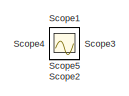
[diagram: root canvas - part 1/2, top left region]
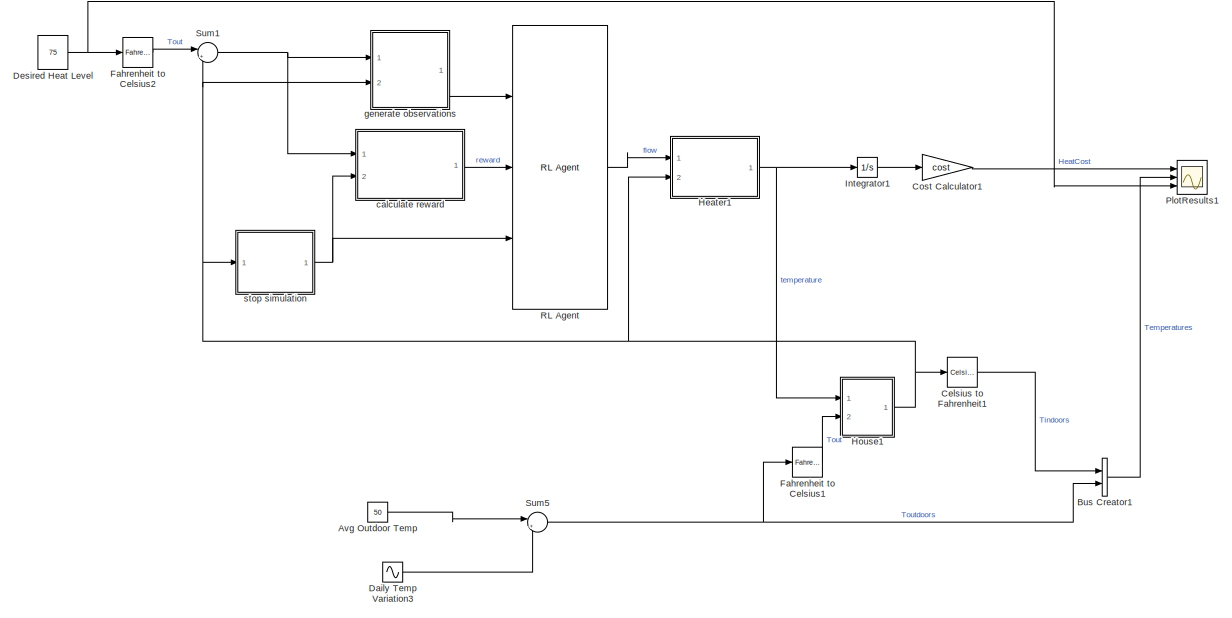
[diagram: root canvas - part 2/2, central region]
MODEL slx_da9a1402c4ab
KIND model
CONFIG AbsTol = auto
CONFIG EnableMultiTasking = off
CONFIG FixedStep = auto
CONFIG MaxStep = auto
CONFIG MinStep = auto
CONFIG RelTol = 1e-3
CONFIG SampleTimeConstraint = Unconstrained
CONFIG SolverName = VariableStepAuto
CONFIG StartTime = 0.0
CONFIG StopTime = 48
WORKSPACE source: mxarray member
WORKSPACE Troom = 30
BLOCK [Constant] Avg Outdoor Temp
  Value = 50
BLOCK [BusCreator] Bus Creator1
  DisplayOption = bar
  InheritFromInputs = on
  Inputs = 2
  Ports = [2, 1]
BLOCK [Reference] Celsius to Fahrenheit1  REF=simulink_extras/Transformations/Celsius to
Fahrenheit
  Ports = [1, 1]
  SourceBlock = simulink_extras/Transformations/Celsius to\nFahrenheit
  SourceProductBaseCode = SL
  SourceType = CelsiusToFahrenheit
BLOCK [Gain] Cost Calculator1
  Gain = cost
  OutDataTypeStr = Inherit: Same as input
  ParamDataTypeStr = Inherit: Same as input
  SaturateOnIntegerOverflow = on
BLOCK [Sin] Daily Temp Variation3
  Amplitude = 15
  Frequency = 2*pi/24
  Ports = [0, 1]
  SampleTime = 0
BLOCK [Constant] Desired Heat Level
  Value = 75
BLOCK [Reference] Fahrenheit to Celsius1  REF=simulink_extras/Transformations/Fahrenheit
to Celsius
  Ports = [1, 1]
  SourceBlock = simulink_extras/Transformations/Fahrenheit\nto Celsius
  SourceProductBaseCode = SL
  SourceType = FahrenheitToCelsius
BLOCK [Reference] Fahrenheit to Celsius2  REF=simulink_extras/Transformations/Fahrenheit
to Celsius
  Ports = [1, 1]
  SourceBlock = simulink_extras/Transformations/Fahrenheit\nto Celsius
  SourceProductBaseCode = SL
  SourceType = FahrenheitToCelsius
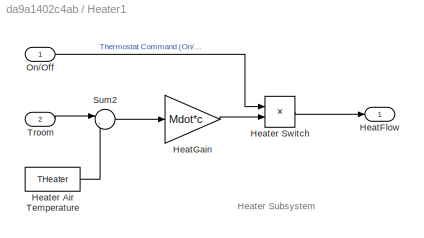
BLOCK [SubSystem] Heater1
  Ports = [2, 1]
  RequestExecContextInheritance = off
BLOCK [Outport] Heater1/HeatFlow
  VectorParamsAs1DForOutWhenUnconnected = off
BLOCK [Gain] Heater1/HeatGain
  Gain = Mdot*c
BLOCK [Constant] Heater1/Heater Air Temperature
  Value = THeater
BLOCK [Product] Heater1/Heater Switch
  Ports = [2, 1]
  RndMeth = Zero
BLOCK [Inport] Heater1/On//Off
BLOCK [Sum] Heater1/Sum2
  Inputs = |-+
  Ports = [2, 1]
BLOCK [Inport] Heater1/Troom
  Port = 2
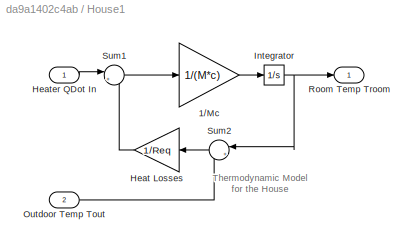
BLOCK [SubSystem] House1
  Ports = [2, 1]
  RequestExecContextInheritance = off
BLOCK [Gain] House1/1//Mc
  Gain = 1/(M*c)
  OutDataTypeStr = Inherit: Same as input
  ParamDataTypeStr = Inherit: Same as input
  SaturateOnIntegerOverflow = on
BLOCK [Gain] House1/Heat Losses
  Gain = 1/Req
  OutDataTypeStr = Inherit: Same as input
  ParamDataTypeStr = Inherit: Same as input
  SaturateOnIntegerOverflow = on
BLOCK [Inport] House1/Heater QDot In
BLOCK [Integrator] House1/Integrator
  InitialCondition = TinIC
  Ports = [1, 1]
BLOCK [Inport] House1/Outdoor Temp Tout
  Port = 2
BLOCK [Outport] House1/Room Temp Troom
  InitialOutput = 0
  VectorParamsAs1DForOutWhenUnconnected = off
BLOCK [Sum] House1/Sum1
  InputSameDT = on
  Inputs = |+-
  OutDataTypeStr = Inherit: Same as first input
  Ports = [2, 1]
  SaturateOnIntegerOverflow = on
BLOCK [Sum] House1/Sum2
  InputSameDT = on
  Inputs = |+-
  OutDataTypeStr = Inherit: Same as first input
  Ports = [2, 1]
  SaturateOnIntegerOverflow = on
BLOCK [Integrator] Integrator1
  Ports = [1, 1]
BLOCK [Scope] PlotResults1
  Floating = off
  NumInputPorts = 3
  Ports = [3]
  ScopeSpecificationString = Simulink.scopes.TimeScopeBlockCfg('CurrentConfiguration', extmgr.ConfigurationSet(extmgr.Configuration('Core','General UI',true),extmgr.Configuration('Core','Source UI',true),extmgr.Configuration('Sources','WiredSimulink',true,'DataLoggingSaveFormat','Array','DataLoggingDecimation','1','DataLoggingDecimateData',true,'DataLoggingVariableName','ScopeData5'),extmgr.Configuration('Visuals','Time Domai...<+2395ch>
BLOCK [Reference] RL Agent  REF=rllib/RL Agent
  Ports = [3, 1]
  SourceBlock = rllib/RL Agent
  SourceProductBaseCode = RL
  SourceType = RL Agent
BLOCK [Scope] Scope
  Floating = off
  IOType = viewer
  NumInputPorts = 1
  Ports = []
  ScopeSpecificationString = Simulink.scopes.TimeScopeBlockCfg('CurrentConfiguration', extmgr.ConfigurationSet(extmgr.Configuration('Core','General UI',true),extmgr.Configuration('Core','Source UI',true),extmgr.Configuration('Sources','WiredSimulink',true),extmgr.Configuration('Visuals','Time Domain',true,'SerializedDisplays',{struct('MinYLimReal','2.00000','MaxYLimReal','4.00000','YLabelReal','','MinYLimMag','2.00000','MaxYL...<+1692ch>
BLOCK [Scope] Scope1
  Floating = off
  IOType = viewer
  NumInputPorts = 1
  Ports = []
  ScopeSpecificationString = Simulink.scopes.TimeScopeBlockCfg('CurrentConfiguration', extmgr.ConfigurationSet(extmgr.Configuration('Core','General UI',true),extmgr.Configuration('Core','Source UI',true),extmgr.Configuration('Sources','WiredSimulink',true,'DataLoggingVariableName','ScopeData1'),extmgr.Configuration('Visuals','Time Domain',true,'SerializedDisplays',{struct('MinYLimReal','19.96632','MaxYLimReal','22.80461','YLa...<+1443ch>
BLOCK [Scope] Scope2
  Floating = off
  IOType = viewer
  NumInputPorts = 1
  Ports = []
  ScopeSpecificationString = Simulink.scopes.TimeScopeBlockCfg('CurrentConfiguration', extmgr.ConfigurationSet(extmgr.Configuration('Core','General UI',true),extmgr.Configuration('Core','Source UI',true),extmgr.Configuration('Sources','WiredSimulink',true,'DataLoggingVariableName','ScopeData2'),extmgr.Configuration('Visuals','Time Domain',true,'SerializedDisplays',{struct('MinYLimReal','-0.19456','MaxYLimReal','0.16755','YLab...<+1393ch>
BLOCK [Scope] Scope3
  Floating = off
  IOType = viewer
  NumInputPorts = 1
  Ports = []
  ScopeSpecificationString = Simulink.scopes.TimeScopeBlockCfg('CurrentConfiguration', extmgr.ConfigurationSet(extmgr.Configuration('Core','General UI',true),extmgr.Configuration('Core','Source UI',true),extmgr.Configuration('Sources','WiredSimulink',true,'DataLoggingVariableName','ScopeData3'),extmgr.Configuration('Visuals','Time Domain',true,'SerializedDisplays',{struct('MinYLimReal','15.00000','MaxYLimReal','35.00000','YLa...<+1431ch>
BLOCK [Scope] Scope4
  Floating = off
  IOType = viewer
  NumInputPorts = 1
  Ports = []
  ScopeSpecificationString = Simulink.scopes.TimeScopeBlockCfg('CurrentConfiguration', extmgr.ConfigurationSet(extmgr.Configuration('Core','General UI',true),extmgr.Configuration('Core','Source UI',true),extmgr.Configuration('Sources','WiredSimulink',true,'DataLoggingVariableName','ScopeData4'),extmgr.Configuration('Visuals','Time Domain',true,'SerializedDisplays',{struct('MinYLimReal','65.00000','MaxYLimReal','85.00000','YLa...<+1430ch>
BLOCK [Scope] Scope5
  Floating = off
  IOType = viewer
  NumInputPorts = 1
  Ports = []
  ScopeSpecificationString = Simulink.scopes.TimeScopeBlockCfg('CurrentConfiguration', extmgr.ConfigurationSet(extmgr.Configuration('Core','General UI',true),extmgr.Configuration('Core','Source UI',true),extmgr.Configuration('Sources','WiredSimulink',true,'DataLoggingVariableName','ScopeData1'),extmgr.Configuration('Visuals','Time Domain',true,'SerializedDisplays',{struct('MinYLimReal','-10.48687','MaxYLimReal','8.15292','YLa...<+1396ch>
BLOCK [Sum] Sum1
  Inputs = |+-
  Ports = [2, 1]
  SaturateOnIntegerOverflow = on
BLOCK [Sum] Sum5
  InputSameDT = on
  Inputs = |++
  OutDataTypeStr = Inherit: Same as first input
  Ports = [2, 1]
  SaturateOnIntegerOverflow = on
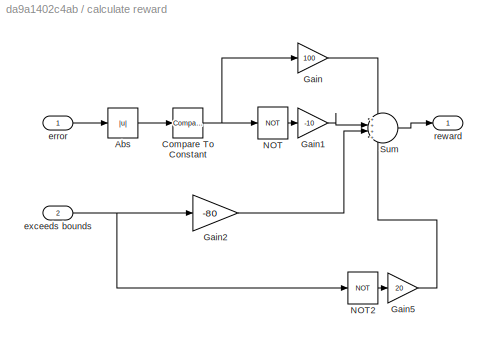
BLOCK [SubSystem] calculate reward
  Ports = [2, 1]
  RequestExecContextInheritance = off
BLOCK [Abs] calculate reward/Abs
  SaturateOnIntegerOverflow = off
BLOCK [Reference] calculate reward/Compare To Constant  REF=simulink/Logic and Bit
Operations/Compare
To Constant
  Ports = [1, 1]
  SourceBlock = simulink/Logic and Bit\nOperations/Compare\nTo Constant
  SourceProductBaseCode = SL
  SourceType = Compare To Constant
BLOCK [Gain] calculate reward/Gain
  Gain = 100
BLOCK [Gain] calculate reward/Gain1
  Gain = -10
BLOCK [Gain] calculate reward/Gain2
  Gain = -80
BLOCK [Gain] calculate reward/Gain5
  Gain = 20
BLOCK [Logic] calculate reward/NOT
  AllPortsSameDT = off
  IconShape = distinctive
  Operator = NOT
  OutDataTypeStr = boolean
  Ports = [1, 1]
BLOCK [Logic] calculate reward/NOT2
  AllPortsSameDT = off
  IconShape = distinctive
  Operator = NOT
  OutDataTypeStr = boolean
  Ports = [1, 1]
BLOCK [Sum] calculate reward/Sum
  Inputs = ++++
  OutDataTypeStr = double
  Ports = [4, 1]
BLOCK [Inport] calculate reward/error
BLOCK [Inport] calculate reward/exceeds bounds
  Port = 2
BLOCK [Outport] calculate reward/reward
  VectorParamsAs1DForOutWhenUnconnected = off
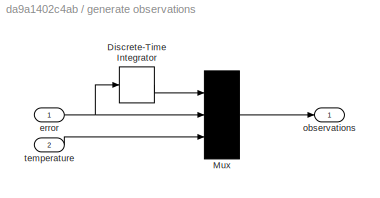
BLOCK [SubSystem] generate observations
  Ports = [2, 1]
  RequestExecContextInheritance = off
BLOCK [DiscreteIntegrator] generate observations/Discrete-Time Integrator
  ICPrevOutput = DiscIntNeverNeededParam
  ICPrevScaledInput = DiscIntNeverNeededParam
  InitialConditionSetting = Auto
  Ports = [1, 1]
  SampleTime = Ts
BLOCK [Mux] generate observations/Mux
  DisplayOption = bar
  Inputs = 3
  Ports = [3, 1]
BLOCK [Inport] generate observations/error
BLOCK [Outport] generate observations/observations
  VectorParamsAs1DForOutWhenUnconnected = off
BLOCK [Inport] generate observations/temperature
  Port = 2
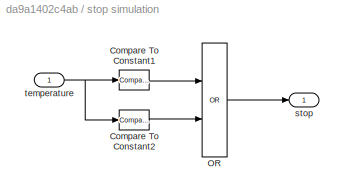
BLOCK [SubSystem] stop simulation
  Ports = [1, 1]
  RequestExecContextInheritance = off
BLOCK [Reference] stop simulation/Compare To Constant1  REF=simulink/Logic and Bit
Operations/Compare
To Constant
  Ports = [1, 1]
  SourceBlock = simulink/Logic and Bit\nOperations/Compare\nTo Constant
  SourceProductBaseCode = SL
  SourceType = Compare To Constant
BLOCK [Reference] stop simulation/Compare To Constant2  REF=simulink/Logic and Bit
Operations/Compare
To Constant
  Ports = [1, 1]
  SourceBlock = simulink/Logic and Bit\nOperations/Compare\nTo Constant
  SourceProductBaseCode = SL
  SourceType = Compare To Constant
BLOCK [Logic] stop simulation/OR
  AllPortsSameDT = off
  IconShape = distinctive
  Operator = OR
  OutDataTypeStr = boolean
  Ports = [2, 1]
BLOCK [Outport] stop simulation/stop
  VectorParamsAs1DForOutWhenUnconnected = off
BLOCK [Inport] stop simulation/temperature
ANNOTATION Heater1: Heater Subsystem
ANNOTATION House1: Thermodynamic Model for the House
LINE Avg Outdoor Temp:1 -> Sum5:1
LINE Bus Creator1:1 -> PlotResults1:2
LINE Celsius to Fahrenheit1:1 -> Bus Creator1:1
LINE Cost Calculator1:1 -> PlotResults1:1
LINE Daily Temp Variation3:1 -> Sum5:2
NET Desired Heat Level:1 -> Fahrenheit to Celsius2:1, PlotResults1:3
LINE Fahrenheit to Celsius1:1 -> House1:2
LINE Fahrenheit to Celsius2:1 -> Sum1:1
LINE Heater1/HeatGain:1 -> Heater1/Heater Switch:2
LINE Heater1/Heater Air Temperature:1 -> Heater1/Sum2:2
LINE Heater1/Heater Switch:1 -> Heater1/HeatFlow:1
LINE Heater1/On//Off:1 -> Heater1/Heater Switch:1
LINE Heater1/Sum2:1 -> Heater1/HeatGain:1
LINE Heater1/Troom:1 -> Heater1/Sum2:1
NET Heater1:1 -> House1:1, Integrator1:1
LINE House1/1//Mc:1 -> House1/Integrator:1
LINE House1/Heat Losses:1 -> House1/Sum1:2
LINE House1/Heater QDot In:1 -> House1/Sum1:1
NET House1/Integrator:1 -> House1/Room Temp Troom:1, House1/Sum2:1
LINE House1/Outdoor Temp Tout:1 -> House1/Sum2:2
LINE House1/Sum1:1 -> House1/1//Mc:1
LINE House1/Sum2:1 -> House1/Heat Losses:1
NET House1:1 -> Celsius to Fahrenheit1:1, Heater1:2, Sum1:2, generate observations:2, stop simulation:1
LINE Integrator1:1 -> Cost Calculator1:1
LINE RL Agent:1 -> Heater1:1
NET Sum1:1 -> calculate reward:1, generate observations:1
NET Sum5:1 -> Bus Creator1:2, Fahrenheit to Celsius1:1
LINE calculate reward/Abs:1 -> calculate reward/Compare To Constant:1
NET calculate reward/Compare To Constant:1 -> calculate reward/Gain:1, calculate reward/NOT:1
LINE calculate reward/Gain1:1 -> calculate reward/Sum:2
LINE calculate reward/Gain2:1 -> calculate reward/Sum:3
LINE calculate reward/Gain5:1 -> calculate reward/Sum:4
LINE calculate reward/Gain:1 -> calculate reward/Sum:1
LINE calculate reward/NOT2:1 -> calculate reward/Gain5:1
LINE calculate reward/NOT:1 -> calculate reward/Gain1:1
LINE calculate reward/Sum:1 -> calculate reward/reward:1
LINE calculate reward/error:1 -> calculate reward/Abs:1
NET calculate reward/exceeds bounds:1 -> calculate reward/Gain2:1, calculate reward/NOT2:1
LINE calculate reward:1 -> RL Agent:2
LINE generate observations/Discrete-Time Integrator:1 -> generate observations/Mux:1
LINE generate observations/Mux:1 -> generate observations/observations:1
NET generate observations/error:1 -> generate observations/Discrete-Time Integrator:1, generate observations/Mux:2
LINE generate observations/temperature:1 -> generate observations/Mux:3
LINE generate observations:1 -> RL Agent:1
LINE stop simulation/Compare To Constant1:1 -> stop simulation/OR:1
LINE stop simulation/Compare To Constant2:1 -> stop simulation/OR:2
LINE stop simulation/OR:1 -> stop simulation/stop:1
NET stop simulation/temperature:1 -> stop simulation/Compare To Constant1:1, stop simulation/Compare To Constant2:1
NET stop simulation:1 -> RL Agent:3, calculate reward:2
note: NET lines group one-source signal fan-out (src -> all destinations, sorted); 1:1 wires keep LINE
